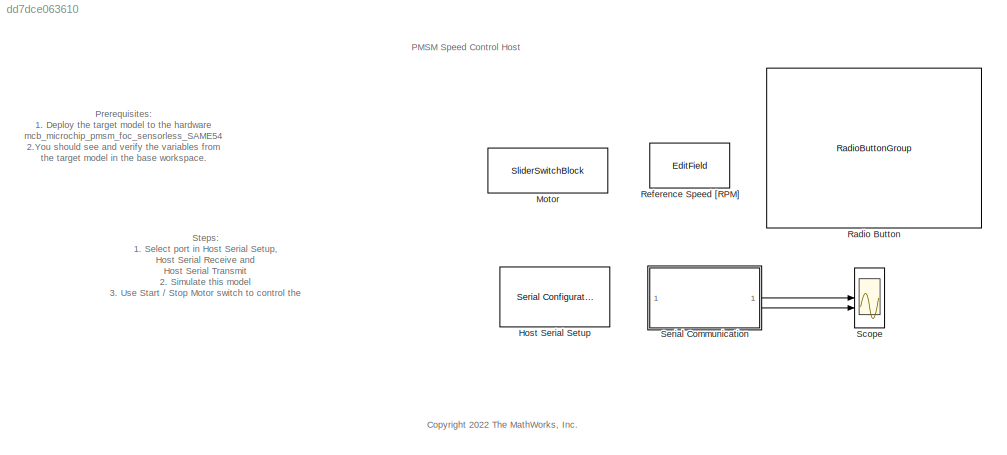
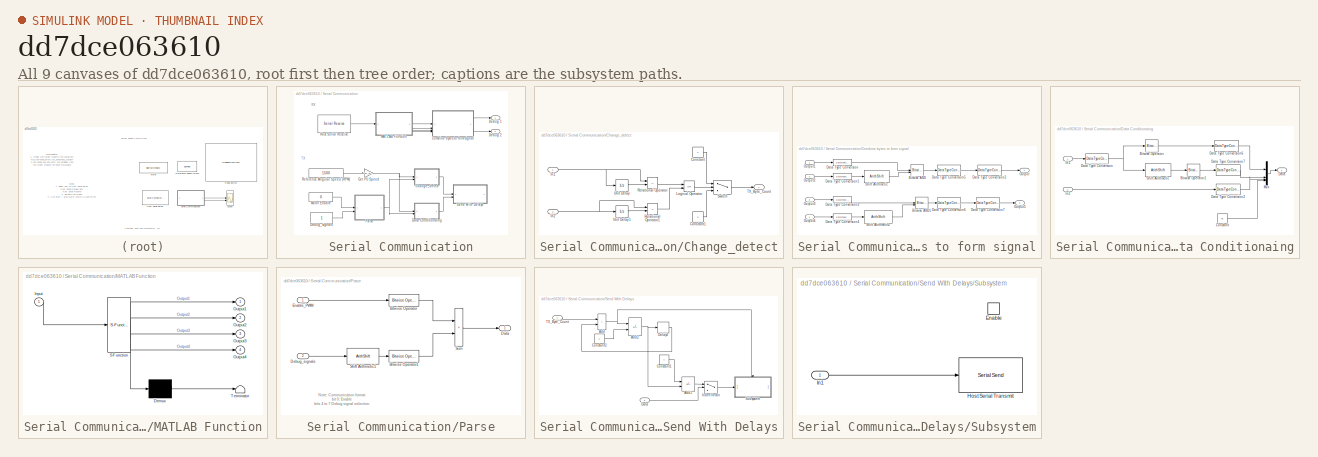
[diagram: thumbnail index - all 9 canvases of the model, root first then tree order]
MODEL slx_dd7dce063610
KIND model
CONFIG AbsTol = auto
CONFIG EnableMultiTasking = on
CONFIG FixedStep = auto
CONFIG MaxStep = auto
CONFIG MinStep = auto
CONFIG RelTol = 1e-3
CONFIG SampleTimeConstraint = Unconstrained
CONFIG SolverName = FixedStepDiscrete
CONFIG StartTime = 0.0
CONFIG StopTime = inf
BLOCK [Reference] Host Serial Setup  REF=instrumentseriallib/Serial Configuration
  Priority = -99
  SourceBlock = instrumentseriallib/Serial Configuration
  SourceType = system.SerialConfiguration
BLOCK [SliderSwitchBlock] Motor
  LabelPosition = Hide
BLOCK [RadioButtonGroup] Radio Button
  ButtonGroupName = Scope signals
  LabelPosition = Hide
  SelectedLabel = Speed_ref & Speed_feedback
BLOCK [EditField] Reference Speed [RPM]
  Alignment = Center
  LabelPosition = Hide
  ShowInitialText = on
BLOCK [Scope] Scope
  Floating = off
  NumInputPorts = 2
  ScopeSpecificationString = Simulink.scopes.TimeScopeBlockCfg('CurrentConfiguration', extmgr.ConfigurationSet(extmgr.Configuration('Core','General UI',true),extmgr.Configuration('Core','Source UI',true),extmgr.Configuration('Sources','WiredSimulink',true),extmgr.Configuration('Visuals','Time Domain',true,'InputProcessing','FrameProcessing','SerializedDisplays',{struct('MinYLimReal','-0.12787','MaxYLimReal','1.13617','YLabelR...<+1921ch>
BLOCK [SubSystem] Serial Communication
BLOCK [SubSystem] Serial Communication/Change_detect
BLOCK [Constant] Serial Communication/Change_detect/Constant
  OutDataTypeStr = uint8
  Value = 4
BLOCK [Constant] Serial Communication/Change_detect/Constant1
  OutDataTypeStr = uint8
  Value = 0
BLOCK [Inport] Serial Communication/Change_detect/In1
BLOCK [Inport] Serial Communication/Change_detect/In2
  Port = 2
BLOCK [Logic] Serial Communication/Change_detect/Logical Operator
  AllPortsSameDT = off
  Operator = OR
  OutDataTypeStr = boolean
BLOCK [RelationalOperator] Serial Communication/Change_detect/Relational Operator
  InputSameDT = off
  Operator = ~=
  OutDataTypeStr = boolean
BLOCK [RelationalOperator] Serial Communication/Change_detect/Relational Operator1
  InputSameDT = off
  Operator = ~=
  OutDataTypeStr = boolean
BLOCK [Switch] Serial Communication/Change_detect/Switch
  Criteria = u2 > Threshold
  InputSameDT = off
  SaturateOnIntegerOverflow = off
BLOCK [Outport] Serial Communication/Change_detect/TX_Byte_Count
  VectorParamsAs1DForOutWhenUnconnected = off
BLOCK [UnitDelay] Serial Communication/Change_detect/Unit Delay
  HasFrameUpgradeWarning = on
  InitialCondition = 0.5
  SampleTime = -1
BLOCK [UnitDelay] Serial Communication/Change_detect/Unit Delay1
  HasFrameUpgradeWarning = on
  SampleTime = -1
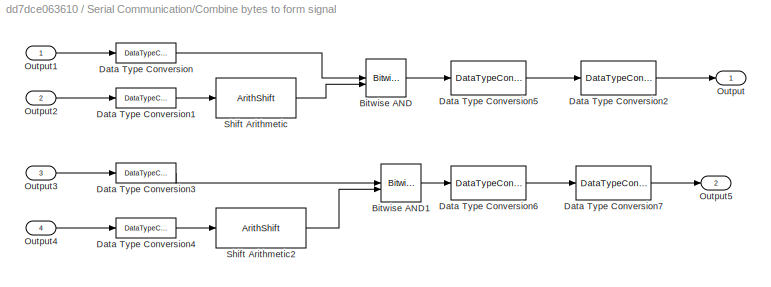
BLOCK [SubSystem] Serial Communication/Combine bytes to form signal
BLOCK [Reference] Serial Communication/Combine bytes to form signal/Bitwise AND  REF=simulink/Logic and Bit
Operations/Bitwise
Operator
  SourceBlock = simulink/Logic and Bit\nOperations/Bitwise\nOperator
  SourceType = Bitwise Operator
BLOCK [Reference] Serial Communication/Combine bytes to form signal/Bitwise AND1  REF=simulink/Logic and Bit
Operations/Bitwise
Operator
  SourceBlock = simulink/Logic and Bit\nOperations/Bitwise\nOperator
  SourceType = Bitwise Operator
BLOCK [DataTypeConversion] Serial Communication/Combine bytes to form signal/Data Type Conversion
  OutDataTypeStr = uint16
  RndMeth = Simplest
  SaturateOnIntegerOverflow = off
BLOCK [DataTypeConversion] Serial Communication/Combine bytes to form signal/Data Type Conversion1
  OutDataTypeStr = uint16
  RndMeth = Simplest
  SaturateOnIntegerOverflow = off
BLOCK [DataTypeConversion] Serial Communication/Combine bytes to form signal/Data Type Conversion2
  OutDataTypeStr = single
  RndMeth = Simplest
  SaturateOnIntegerOverflow = off
BLOCK [DataTypeConversion] Serial Communication/Combine bytes to form signal/Data Type Conversion3
  OutDataTypeStr = uint16
  RndMeth = Simplest
  SaturateOnIntegerOverflow = off
BLOCK [DataTypeConversion] Serial Communication/Combine bytes to form signal/Data Type Conversion4
  OutDataTypeStr = uint16
  RndMeth = Simplest
  SaturateOnIntegerOverflow = off
BLOCK [DataTypeConversion] Serial Communication/Combine bytes to form signal/Data Type Conversion5
  ConvertRealWorld = Stored Integer (SI)
  OutDataTypeStr = fixdt(1,16,12)
  RndMeth = Simplest
  SaturateOnIntegerOverflow = off
BLOCK [DataTypeConversion] Serial Communication/Combine bytes to form signal/Data Type Conversion6
  ConvertRealWorld = Stored Integer (SI)
  OutDataTypeStr = fixdt(1,16,12)
  RndMeth = Simplest
  SaturateOnIntegerOverflow = off
BLOCK [DataTypeConversion] Serial Communication/Combine bytes to form signal/Data Type Conversion7
  OutDataTypeStr = single
  RndMeth = Simplest
  SaturateOnIntegerOverflow = off
BLOCK [Outport] Serial Communication/Combine bytes to form signal/Output
BLOCK [Inport] Serial Communication/Combine bytes to form signal/Output1
BLOCK [Inport] Serial Communication/Combine bytes to form signal/Output2
  Port = 2
BLOCK [Inport] Serial Communication/Combine bytes to form signal/Output3
  Port = 3
BLOCK [Inport] Serial Communication/Combine bytes to form signal/Output4
  Port = 4
BLOCK [Outport] Serial Communication/Combine bytes to form signal/Output5
  Port = 2
BLOCK [ArithShift] Serial Communication/Combine bytes to form signal/Shift Arithmetic
  BitShiftDirection = Left
  BitShiftNumber = 8
  InputPortMap = u0
BLOCK [ArithShift] Serial Communication/Combine bytes to form signal/Shift Arithmetic2
  BitShiftDirection = Left
  BitShiftNumber = 8
  InputPortMap = u0
BLOCK [SubSystem] Serial Communication/Data Conditionaing
  VariantControl = ~isequal(dataType, 'single')
BLOCK [Reference] Serial Communication/Data Conditionaing/Bitwise Operator  REF=simulink/Logic and Bit
Operations/Bitwise
Operator
  SourceBlock = simulink/Logic and Bit\nOperations/Bitwise\nOperator
  SourceType = Bitwise Operator
BLOCK [Reference] Serial Communication/Data Conditionaing/Bitwise Operator1  REF=simulink/Logic and Bit
Operations/Bitwise
Operator
  SourceBlock = simulink/Logic and Bit\nOperations/Bitwise\nOperator
  SourceType = Bitwise Operator
BLOCK [Constant] Serial Communication/Data Conditionaing/Constant
  OutDataTypeStr = uint8
  Value = 45
BLOCK [Outport] Serial Communication/Data Conditionaing/Data
BLOCK [DataTypeConversion] Serial Communication/Data Conditionaing/Data Type Conversion
  ConvertRealWorld = Stored Integer (SI)
  OutDataTypeStr = uint16
  RndMeth = Simplest
  SaturateOnIntegerOverflow = off
BLOCK [DataTypeConversion] Serial Communication/Data Conditionaing/Data Type Conversion2
  OutDataTypeStr = uint8
  RndMeth = Simplest
  SaturateOnIntegerOverflow = off
BLOCK [DataTypeConversion] Serial Communication/Data Conditionaing/Data Type Conversion6
  OutDataTypeStr = uint8
  RndMeth = Simplest
  SaturateOnIntegerOverflow = off
BLOCK [DataTypeConversion] Serial Communication/Data Conditionaing/Data Type Conversion7
  OutDataTypeStr = uint8
  RndMeth = Simplest
  SaturateOnIntegerOverflow = off
BLOCK [Inport] Serial Communication/Data Conditionaing/In1
BLOCK [Inport] Serial Communication/Data Conditionaing/In2
  Port = 2
BLOCK [Mux] Serial Communication/Data Conditionaing/Mux
  DisplayOption = bar
BLOCK [ArithShift] Serial Communication/Data Conditionaing/Shift Arithmetic
  BitShiftDirection = Right
  BitShiftNumber = 8
  InputPortMap = u0
BLOCK [Outport] Serial Communication/Debug 1
BLOCK [Outport] Serial Communication/Debug 2
  Port = 2
BLOCK [Constant] Serial Communication/Debug_signals
  OutDataTypeStr = uint8
  SampleTime = 600 * Ts
BLOCK [Gain] Serial Communication/Get PU Speed
  Gain = 1/PU_System.N_base
  OutDataTypeStr = fixdt(1,16,10)
  RndMeth = Simplest
BLOCK [Reference] Serial Communication/Host Serial Receive  REF=instrumentseriallib/Serial Receive
  SourceBlock = instrumentseriallib/Serial Receive
  SourceType = system.SerialReceive
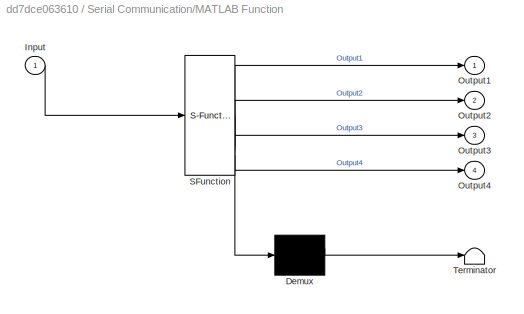
BLOCK [SubSystem] Serial Communication/MATLAB Function
  ErrorFcn = Stateflow.Translate.translate
  PermitHierarchicalResolution = ExplicitOnly
  SFBlockType = MATLAB Function
  TreatAsAtomicUnit = on
BLOCK [Demux] Serial Communication/MATLAB Function/ Demux 
  Outputs = 1
BLOCK [S-Function] Serial Communication/MATLAB Function/ SFunction 
  EnableBusSupport = on
  FunctionName = sf_sfun
  PortCounts = [1 5]
  SFcnIsStateOwnerBlock = off
  SFunctionDeploymentMode = off
  Tag = Stateflow S-Function 3
BLOCK [Terminator] Serial Communication/MATLAB Function/ Terminator 
BLOCK [Inport] Serial Communication/MATLAB Function/Input
BLOCK [Outport] Serial Communication/MATLAB Function/Output1
BLOCK [Outport] Serial Communication/MATLAB Function/Output2
  Port = 2
BLOCK [Outport] Serial Communication/MATLAB Function/Output3
  Port = 3
BLOCK [Outport] Serial Communication/MATLAB Function/Output4
  Port = 4
BLOCK [Constant] Serial Communication/Motor Enable
  OutDataTypeStr = uint8
  SampleTime = 600 * Ts
  Value = 0
  VectorParams1D = off
BLOCK [SubSystem] Serial Communication/Parse
BLOCK [Reference] Serial Communication/Parse/Bitwise Operator  REF=simulink/Logic and Bit
Operations/Bitwise
Operator
  SourceBlock = simulink/Logic and Bit\nOperations/Bitwise\nOperator
  SourceType = Bitwise Operator
BLOCK [Reference] Serial Communication/Parse/Bitwise Operator1  REF=simulink/Logic and Bit
Operations/Bitwise
Operator
  SourceBlock = simulink/Logic and Bit\nOperations/Bitwise\nOperator
  SourceType = Bitwise Operator
BLOCK [Outport] Serial Communication/Parse/Data
BLOCK [Inport] Serial Communication/Parse/Debug_signals
  Port = 2
BLOCK [Inport] Serial Communication/Parse/Enable_PWM
BLOCK [ArithShift] Serial Communication/Parse/Shift Arithmetic1
  BitShiftNumber = -4
  InputPortMap = u0
BLOCK [Sum] Serial Communication/Parse/Sum
  IconShape = rectangular
BLOCK [Constant] Serial Communication/Reference Angular Speed (RPM)
  OutDataTypeStr = single
  SampleTime = 600 * Ts
  Value = 1500
  VectorParams1D = off
BLOCK [SubSystem] Serial Communication/Send With Delays
BLOCK [Sum] Serial Communication/Send With Delays/Add
  IconShape = rectangular
  SaturateOnIntegerOverflow = on
BLOCK [Sum] Serial Communication/Send With Delays/Add1
  IconShape = rectangular
  Inputs = +-
  SaturateOnIntegerOverflow = on
BLOCK [Sum] Serial Communication/Send With Delays/Add2
  IconShape = rectangular
  Inputs = +-
  SaturateOnIntegerOverflow = on
BLOCK [Constant] Serial Communication/Send With Delays/Constant1
  OutDataTypeStr = uint8
  Value = 4
BLOCK [Constant] Serial Communication/Send With Delays/Constant2
  OutDataTypeStr = uint8
BLOCK [Inport] Serial Communication/Send With Delays/Data
  Port = 2
BLOCK [Delay] Serial Communication/Send With Delays/Delay4
  DelayLength = 1
  InputPortMap = u0
BLOCK [MultiPortSwitch] Serial Communication/Send With Delays/Index Vector
  InputSameDT = off
  Inputs = 1
  SaturateOnIntegerOverflow = off
BLOCK [SubSystem] Serial Communication/Send With Delays/Subsystem
BLOCK [EnablePort] Serial Communication/Send With Delays/Subsystem/Enable
BLOCK [Reference] Serial Communication/Send With Delays/Subsystem/Host Serial Transmit  REF=instrumentseriallib/Serial Send
  SourceBlock = instrumentseriallib/Serial Send
  SourceType = system.SerialSend
BLOCK [Inport] Serial Communication/Send With Delays/Subsystem/In1
BLOCK [Inport] Serial Communication/Send With Delays/TX_Byte_Count
ANNOTATION (root): <copyright redacted>
ANNOTATION (root): PMSM Speed Control Host
ANNOTATION (root): Steps: 1. Select port in Host Serial Setup , Host Serial Receive and Host Serial Transmit 2. Simulate this model 3. Use Start / Stop Motor switch to control the motor. 4. Enter Reference speed in degrees using edit box 5. Observe the selected signals in the scope
ANNOTATION (root): Prerequisites: 1. Deploy the target model to the hardware mcb_microchip_pmsm_foc_sensorless_SAME54 2.You should see and verify the variables from the target model in the base workspace.
ANNOTATION Serial Communication: RX
ANNOTATION Serial Communication: TX
ANNOTATION Serial Communication/Parse: Note : Communication format bit 0: Enable bits 4 to 7 Debug signal selection
LINE Serial Communication/Change_detect/Constant1:1 -> Serial Communication/Change_detect/Switch:3
LINE Serial Communication/Change_detect/Constant:1 -> Serial Communication/Change_detect/Switch:1
NET Serial Communication/Change_detect/In1:1 -> Serial Communication/Change_detect/Relational Operator:1, Serial Communication/Change_detect/Unit Delay:1
NET Serial Communication/Change_detect/In2:1 -> Serial Communication/Change_detect/Relational Operator1:1, Serial Communication/Change_detect/Unit Delay1:1
LINE Serial Communication/Change_detect/Logical Operator:1 -> Serial Communication/Change_detect/Switch:2
LINE Serial Communication/Change_detect/Relational Operator1:1 -> Serial Communication/Change_detect/Logical Operator:2
LINE Serial Communication/Change_detect/Relational Operator:1 -> Serial Communication/Change_detect/Logical Operator:1
LINE Serial Communication/Change_detect/Switch:1 -> Serial Communication/Change_detect/TX_Byte_Count:1
LINE Serial Communication/Change_detect/Unit Delay1:1 -> Serial Communication/Change_detect/Relational Operator1:2
LINE Serial Communication/Change_detect/Unit Delay:1 -> Serial Communication/Change_detect/Relational Operator:2
LINE Serial Communication/Change_detect:1 -> Serial Communication/Send With Delays:1
LINE Serial Communication/Combine bytes to form signal/Bitwise AND1:1 -> Serial Communication/Combine bytes to form signal/Data Type Conversion6:1
LINE Serial Communication/Combine bytes to form signal/Bitwise AND:1 -> Serial Communication/Combine bytes to form signal/Data Type Conversion5:1
LINE Serial Communication/Combine bytes to form signal/Data Type Conversion1:1 -> Serial Communication/Combine bytes to form signal/Shift Arithmetic:1
LINE Serial Communication/Combine bytes to form signal/Data Type Conversion2:1 -> Serial Communication/Combine bytes to form signal/Output:1
LINE Serial Communication/Combine bytes to form signal/Data Type Conversion3:1 -> Serial Communication/Combine bytes to form signal/Bitwise AND1:1
LINE Serial Communication/Combine bytes to form signal/Data Type Conversion4:1 -> Serial Communication/Combine bytes to form signal/Shift Arithmetic2:1
LINE Serial Communication/Combine bytes to form signal/Data Type Conversion5:1 -> Serial Communication/Combine bytes to form signal/Data Type Conversion2:1
LINE Serial Communication/Combine bytes to form signal/Data Type Conversion6:1 -> Serial Communication/Combine bytes to form signal/Data Type Conversion7:1
LINE Serial Communication/Combine bytes to form signal/Data Type Conversion7:1 -> Serial Communication/Combine bytes to form signal/Output5:1
LINE Serial Communication/Combine bytes to form signal/Data Type Conversion:1 -> Serial Communication/Combine bytes to form signal/Bitwise AND:1
LINE Serial Communication/Combine bytes to form signal/Output1:1 -> Serial Communication/Combine bytes to form signal/Data Type Conversion:1
LINE Serial Communication/Combine bytes to form signal/Output2:1 -> Serial Communication/Combine bytes to form signal/Data Type Conversion1:1
LINE Serial Communication/Combine bytes to form signal/Output3:1 -> Serial Communication/Combine bytes to form signal/Data Type Conversion3:1
LINE Serial Communication/Combine bytes to form signal/Output4:1 -> Serial Communication/Combine bytes to form signal/Data Type Conversion4:1
LINE Serial Communication/Combine bytes to form signal/Shift Arithmetic2:1 -> Serial Communication/Combine bytes to form signal/Bitwise AND1:2
LINE Serial Communication/Combine bytes to form signal/Shift Arithmetic:1 -> Serial Communication/Combine bytes to form signal/Bitwise AND:2
LINE Serial Communication/Combine bytes to form signal:1 -> Serial Communication/Debug 1:1
LINE Serial Communication/Combine bytes to form signal:2 -> Serial Communication/Debug 2:1
LINE Serial Communication/Data Conditionaing/Bitwise Operator1:1 -> Serial Communication/Data Conditionaing/Data Type Conversion7:1
LINE Serial Communication/Data Conditionaing/Bitwise Operator:1 -> Serial Communication/Data Conditionaing/Data Type Conversion6:1
LINE Serial Communication/Data Conditionaing/Constant:1 -> Serial Communication/Data Conditionaing/Mux:4
LINE Serial Communication/Data Conditionaing/Data Type Conversion2:1 -> Serial Communication/Data Conditionaing/Mux:3
LINE Serial Communication/Data Conditionaing/Data Type Conversion6:1 -> Serial Communication/Data Conditionaing/Mux:1
LINE Serial Communication/Data Conditionaing/Data Type Conversion7:1 -> Serial Communication/Data Conditionaing/Mux:2
NET Serial Communication/Data Conditionaing/Data Type Conversion:1 -> Serial Communication/Data Conditionaing/Bitwise Operator:1, Serial Communication/Data Conditionaing/Shift Arithmetic:1
LINE Serial Communication/Data Conditionaing/In1:1 -> Serial Communication/Data Conditionaing/Data Type Conversion:1
LINE Serial Communication/Data Conditionaing/In2:1 -> Serial Communication/Data Conditionaing/Data Type Conversion2:1
LINE Serial Communication/Data Conditionaing/Mux:1 -> Serial Communication/Data Conditionaing/Data:1
LINE Serial Communication/Data Conditionaing/Shift Arithmetic:1 -> Serial Communication/Data Conditionaing/Bitwise Operator1:1
LINE Serial Communication/Data Conditionaing:1 -> Serial Communication/Send With Delays:2
LINE Serial Communication/Debug_signals:1 -> Serial Communication/Parse:2
NET Serial Communication/Get PU Speed:1 -> Serial Communication/Change_detect:1, Serial Communication/Data Conditionaing:1
LINE Serial Communication/Host Serial Receive:1 -> Serial Communication/MATLAB Function:1
LINE Serial Communication/MATLAB Function:1 -> Serial Communication/Combine bytes to form signal:1
LINE Serial Communication/MATLAB Function:2 -> Serial Communication/Combine bytes to form signal:2
LINE Serial Communication/MATLAB Function:3 -> Serial Communication/Combine bytes to form signal:3
LINE Serial Communication/MATLAB Function:4 -> Serial Communication/Combine bytes to form signal:4
LINE Serial Communication/Motor Enable:1 -> Serial Communication/Parse:1
LINE Serial Communication/Parse/Bitwise Operator1:1 -> Serial Communication/Parse/Sum:2
LINE Serial Communication/Parse/Bitwise Operator:1 -> Serial Communication/Parse/Sum:1
LINE Serial Communication/Parse/Debug_signals:1 -> Serial Communication/Parse/Shift Arithmetic1:1
LINE Serial Communication/Parse/Enable_PWM:1 -> Serial Communication/Parse/Bitwise Operator:1
LINE Serial Communication/Parse/Shift Arithmetic1:1 -> Serial Communication/Parse/Bitwise Operator1:1
LINE Serial Communication/Parse/Sum:1 -> Serial Communication/Parse/Data:1
NET Serial Communication/Parse:1 -> Serial Communication/Change_detect:2, Serial Communication/Data Conditionaing:2
LINE Serial Communication/Reference Angular Speed (RPM):1 -> Serial Communication/Get PU Speed:1
LINE Serial Communication/Send With Delays/Add1:1 -> Serial Communication/Send With Delays/Index Vector:1
NET Serial Communication/Send With Delays/Add2:1 -> Serial Communication/Send With Delays/Add1:2, Serial Communication/Send With Delays/Delay4:1
NET Serial Communication/Send With Delays/Add:1 -> Serial Communication/Send With Delays/Add2:1, Serial Communication/Send With Delays/Subsystem:enable
LINE Serial Communication/Send With Delays/Constant1:1 -> Serial Communication/Send With Delays/Add1:1
LINE Serial Communication/Send With Delays/Constant2:1 -> Serial Communication/Send With Delays/Add2:2
LINE Serial Communication/Send With Delays/Data:1 -> Serial Communication/Send With Delays/Index Vector:2
LINE Serial Communication/Send With Delays/Delay4:1 -> Serial Communication/Send With Delays/Add:2
LINE Serial Communication/Send With Delays/Index Vector:1 -> Serial Communication/Send With Delays/Subsystem:1
LINE Serial Communication/Send With Delays/Subsystem/In1:1 -> Serial Communication/Send With Delays/Subsystem/Host Serial Transmit:1
LINE Serial Communication/Send With Delays/TX_Byte_Count:1 -> Serial Communication/Send With Delays/Add:1
LINE Serial Communication:1 -> Scope:1
LINE Serial Communication:2 -> Scope:2
note: NET lines group one-source signal fan-out (src -> all destinations, sorted); 1:1 wires keep LINE
CHART Serial Communication/MATLAB Function states=1 transitions=1
  STATE_LABEL 'eML_blk_kernel()'
  STATE_LABEL 'SCRIPT:\nfunction [ Output1, Output2, Output3, Output4] = unBuf(Input)\n\nOutput1= Input(:, 1);\nOutput2 = Input(:, 2);\nOutput3 = Input(:, 3);\nOutput4 = Input(:, 4);\n\nend'
CHART  states=0 transitions=0
